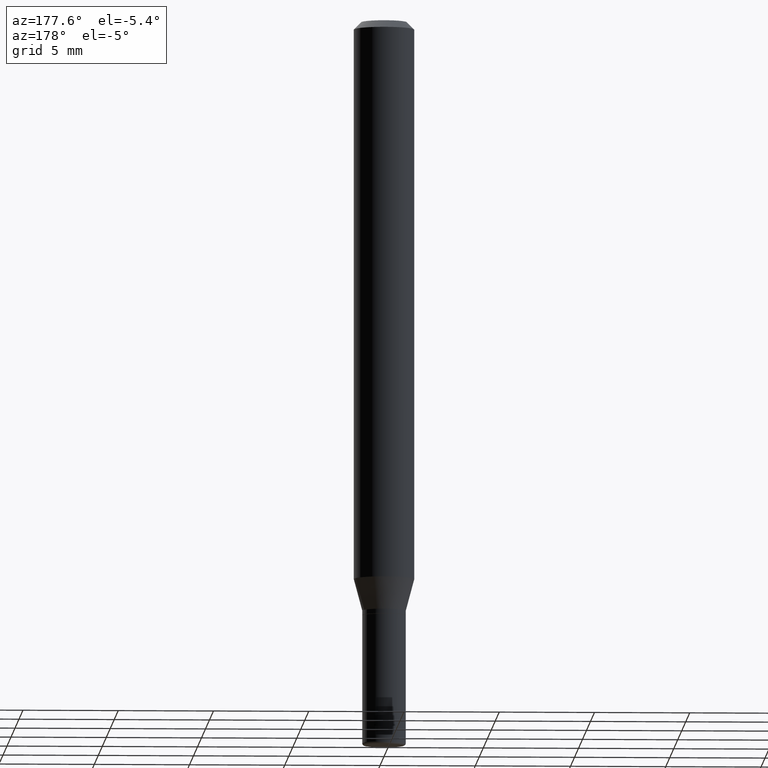
[diagram: clean part render]
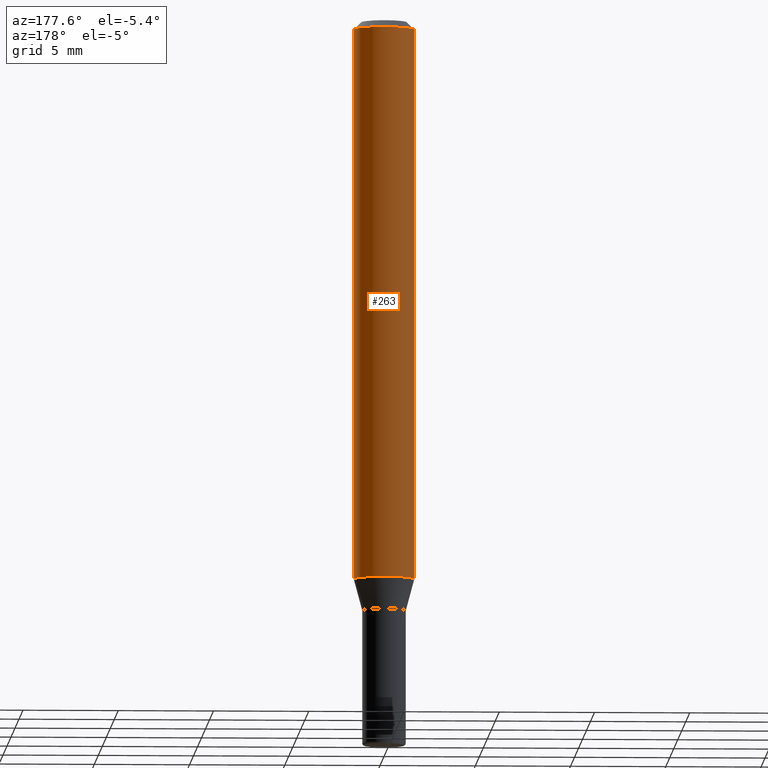
[diagram: same view with one face highlighted and labeled with its STEP entity id]
A machine part, auxiliary view. The second image highlights one B-rep face of the part: STEP entity #263.
In plain terms, the highlighted cylindrical surface (edge-blend (fillet) strip) has radius 1.5875 mm, axis along (-0, 0, 1).
Its self-contained STEP definition (entity closure, byte-faithful):
#34 = DIRECTION ( 'NONE',  ( -2.445468806185136597E-29, 3.491481338843145583E-15, 1.000000000000000000 ) ) ;
#39 = DIRECTION ( 'NONE',  ( -2.445468806185136877E-29, 3.491481338843145188E-15, 1.000000000000000000 ) ) ;
#41 = DIRECTION ( 'NONE',  ( -2.445468806185136597E-29, 3.491481338843145583E-15, 1.000000000000000000 ) ) ;
#52 = CARTESIAN_POINT ( 'NONE',  ( 0.000000000000000000, 0.000000000000000000, 0.000000000000000000 ) ) ;
#56 = VERTEX_POINT ( 'NONE', #480 ) ;
#70 = LINE ( 'NONE', #185, #306 ) ;
#76 = LINE ( 'NONE', #398, #372 ) ;
#83 = EDGE_CURVE ( 'NONE', #186, #56, #243, .T. ) ;
#122 = CARTESIAN_POINT ( 'NONE',  ( 2.823756201468229950E-29, -4.031575482759414101E-15, -1.154689110867544111 ) ) ;
#140 = FACE_OUTER_BOUND ( 'NONE', #141, .T. ) ;
#141 = EDGE_LOOP ( 'NONE', ( #240, #501, #464, #412 ) ) ;
#166 = DIRECTION ( 'NONE',  ( -2.445468806185136597E-29, 3.491481338843145583E-15, 1.000000000000000000 ) ) ;
#179 = DIRECTION ( 'NONE',  ( -2.445468806185136877E-29, 3.491481338843145188E-15, 1.000000000000000000 ) ) ;
#180 = EDGE_CURVE ( 'NONE', #232, #186, #76, .T. ) ;
#185 = CARTESIAN_POINT ( 'NONE',  ( -0.06250000000000000000, 4.440892098500626162E-16, -3.074334431409316114E-30 ) ) ;
#186 = VERTEX_POINT ( 'NONE', #357 ) ;
#196 = DIRECTION ( 'NONE',  ( 1.000000000000000000, -6.982962677686262766E-15, 0.000000000000000000 ) ) ;
#232 = VERTEX_POINT ( 'NONE', #297 ) ;
#233 = CARTESIAN_POINT ( 'NONE',  ( 3.668203209277632395E-31, -5.237222008264614861E-17, -0.01499999999999970281 ) ) ;
#240 = ORIENTED_EDGE ( 'NONE', *, *, #517, .T. ) ;
#243 = CIRCLE ( 'NONE', #498, 0.06250000000000000000 ) ;
#263 = ADVANCED_FACE ( 'NONE', ( #140 ), #380, .T. ) ;
#297 = CARTESIAN_POINT ( 'NONE',  ( 0.06250000000000000000, -4.468010650114805770E-15, -1.154689110867544111 ) ) ;
#306 = VECTOR ( 'NONE', #179, 39.37007874015748143 ) ;
#357 = CARTESIAN_POINT ( 'NONE',  ( 0.06250000000000000000, -4.888073874380378612E-16, -0.01499999999999970281 ) ) ;
#372 = VECTOR ( 'NONE', #39, 39.37007874015748143 ) ;
#380 = CYLINDRICAL_SURFACE ( 'NONE', #466, 0.06250000000000000000 ) ;
#381 = EDGE_CURVE ( 'NONE', #497, #56, #70, .T. ) ;
#386 = CARTESIAN_POINT ( 'NONE',  ( -0.06250000000000000000, -3.587486272909351485E-15, -1.154689110867544111 ) ) ;
#398 = CARTESIAN_POINT ( 'NONE',  ( 0.06250000000000000000, -4.364351673553916694E-16, 3.047610484872459871E-30 ) ) ;
#412 = ORIENTED_EDGE ( 'NONE', *, *, #180, .F. ) ;
#421 = CIRCLE ( 'NONE', #474, 0.06250000000000000000 ) ;
#464 = ORIENTED_EDGE ( 'NONE', *, *, #83, .F. ) ;
#466 = AXIS2_PLACEMENT_3D ( 'NONE', #52, #166, #500 ) ;
#474 = AXIS2_PLACEMENT_3D ( 'NONE', #122, #34, #196 ) ;
#480 = CARTESIAN_POINT ( 'NONE',  ( -0.06250000000000000000, -1.597884641570967382E-15, -0.01499999999999970281 ) ) ;
#497 = VERTEX_POINT ( 'NONE', #386 ) ;
#498 = AXIS2_PLACEMENT_3D ( 'NONE', #233, #41, #516 ) ;
#500 = DIRECTION ( 'NONE',  ( 1.000000000000000000, -6.982962677686266711E-15, 4.876176775795935793E-29 ) ) ;
#501 = ORIENTED_EDGE ( 'NONE', *, *, #381, .T. ) ;
#516 = DIRECTION ( 'NONE',  ( 1.000000000000000000, -6.982962677686266711E-15, 0.000000000000000000 ) ) ;
#517 = EDGE_CURVE ( 'NONE', #232, #497, #421, .T. ) ;